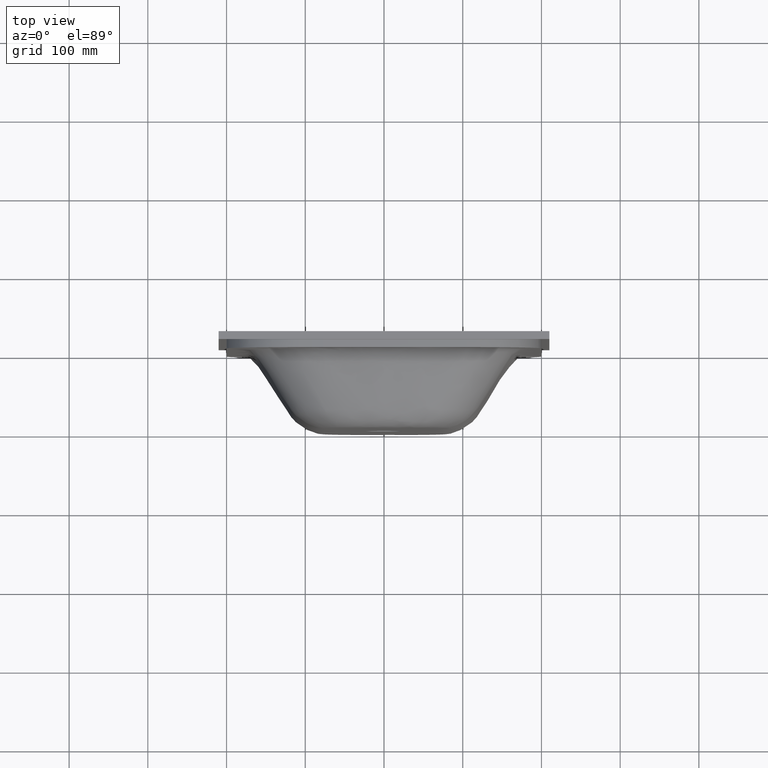
[diagram: clean part render]
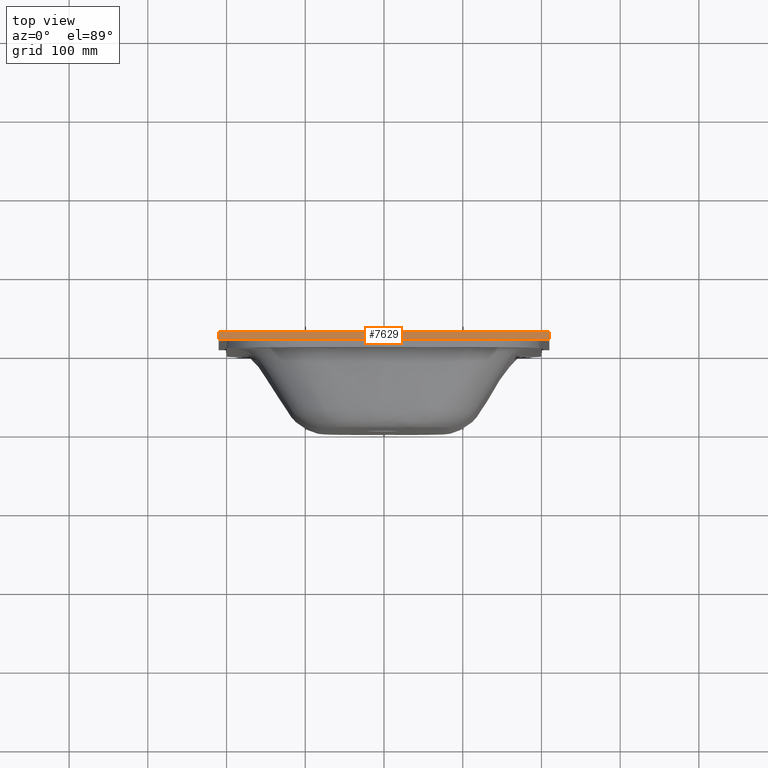
[diagram: same view with one face highlighted and labeled with its STEP entity id]
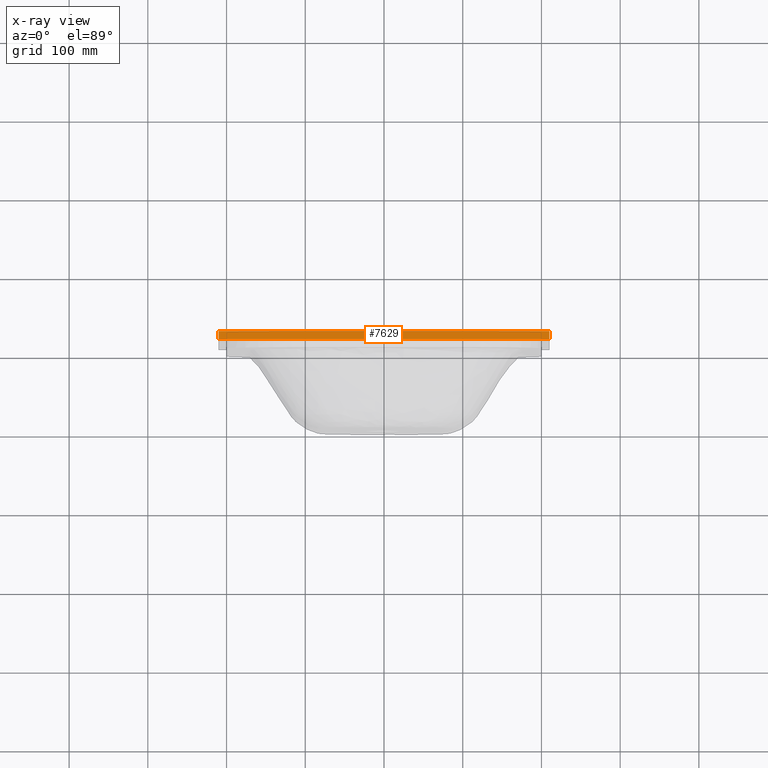
[diagram: x-ray of the same camera — body ghosted, the highlighted face saturated]
A machine part, top view. The second image highlights one B-rep face of the part: STEP entity #7629.
The next image is the same camera in x-ray: the body ghosted, the highlighted face saturated — about 0% of this face is hidden behind the body in this view.
In plain terms, the highlighted planar face has unit normal (0, 0, -1).
Its self-contained STEP definition (entity closure, byte-faithful):
#761 = EDGE_CURVE ( 'NONE', #8004, #10738, #2464, .T. ) ;
#1281 = EDGE_CURVE ( 'NONE', #9270, #8004, #9518, .T. ) ;
#2230 = ORIENTED_EDGE ( 'NONE', *, *, #1281, .F. ) ;
#2336 = VECTOR ( 'NONE', #9964, 1000.000000000000000 ) ;
#2464 = LINE ( 'NONE', #8919, #6069 ) ;
#3043 = CARTESIAN_POINT ( 'NONE',  ( -209.9999999999999400, 120.0000000000001100, 410.0000000000005100 ) ) ;
#3050 = VERTEX_POINT ( 'NONE', #3127 ) ;
#3127 = CARTESIAN_POINT ( 'NONE',  ( 210.0000000000001400, 119.9999999999999000, 410.0000000000005100 ) ) ;
#3837 = CARTESIAN_POINT ( 'NONE',  ( 210.0000000000001400, 109.9999999999999000, 410.0000000000005100 ) ) ;
#4179 = DIRECTION ( 'NONE',  ( 5.551115123125777800E-016, 1.000000000000000000, 2.775557561562889400E-015 ) ) ;
#4283 = CARTESIAN_POINT ( 'NONE',  ( 210.0000000000001400, 109.9999999999999000, 410.0000000000005100 ) ) ;
#4348 = DIRECTION ( 'NONE',  ( 0.0000000000000000000, 1.000000000000000000, 2.775557561562889400E-015 ) ) ;
#4367 = DIRECTION ( 'NONE',  ( 1.467375195723607100E-030, 2.775557561562889400E-015, -1.000000000000000000 ) ) ;
#4370 = CARTESIAN_POINT ( 'NONE',  ( -209.9999999999999400, 110.0000000000001300, 410.0000000000005100 ) ) ;
#4400 = PLANE ( 'NONE',  #10925 ) ;
#4403 = CARTESIAN_POINT ( 'NONE',  ( -209.9999999999999400, 110.0000000000001300, 410.0000000000005100 ) ) ;
#4666 = VECTOR ( 'NONE', #4179, 1000.000000000000000 ) ;
#5088 = EDGE_CURVE ( 'NONE', #3050, #10738, #10808, .T. ) ;
#5974 = FACE_OUTER_BOUND ( 'NONE', #10305, .T. ) ;
#6069 = VECTOR ( 'NONE', #8585, 1000.000000000000000 ) ;
#6447 = VECTOR ( 'NONE', #9990, 1000.000000000000000 ) ;
#6882 = LINE ( 'NONE', #4283, #4666 ) ;
#6998 = EDGE_CURVE ( 'NONE', #9270, #3050, #6882, .T. ) ;
#7023 = ORIENTED_EDGE ( 'NONE', *, *, #6998, .T. ) ;
#7629 = ADVANCED_FACE ( 'NONE', ( #5974 ), #4400, .F. ) ;
#8004 = VERTEX_POINT ( 'NONE', #4403 ) ;
#8585 = DIRECTION ( 'NONE',  ( 5.551115123125777800E-016, 1.000000000000000000, 2.775557561562889400E-015 ) ) ;
#8919 = CARTESIAN_POINT ( 'NONE',  ( -209.9999999999999400, 110.0000000000001300, 410.0000000000005100 ) ) ;
#9153 = CARTESIAN_POINT ( 'NONE',  ( -209.9999999999999400, 110.0000000000001300, 410.0000000000005100 ) ) ;
#9247 = ORIENTED_EDGE ( 'NONE', *, *, #5088, .T. ) ;
#9270 = VERTEX_POINT ( 'NONE', #3837 ) ;
#9518 = LINE ( 'NONE', #9153, #6447 ) ;
#9876 = ORIENTED_EDGE ( 'NONE', *, *, #761, .F. ) ;
#9964 = DIRECTION ( 'NONE',  ( -1.000000000000000000, 5.286776307738840600E-016, -0.0000000000000000000 ) ) ;
#9990 = DIRECTION ( 'NONE',  ( -1.000000000000000000, 5.286776307738840600E-016, -0.0000000000000000000 ) ) ;
#10182 = CARTESIAN_POINT ( 'NONE',  ( -209.9999999999999400, 120.0000000000001100, 410.0000000000005100 ) ) ;
#10305 = EDGE_LOOP ( 'NONE', ( #9247, #9876, #2230, #7023 ) ) ;
#10738 = VERTEX_POINT ( 'NONE', #3043 ) ;
#10808 = LINE ( 'NONE', #10182, #2336 ) ;
#10925 = AXIS2_PLACEMENT_3D ( 'NONE', #4370, #4367, #4348 ) ;